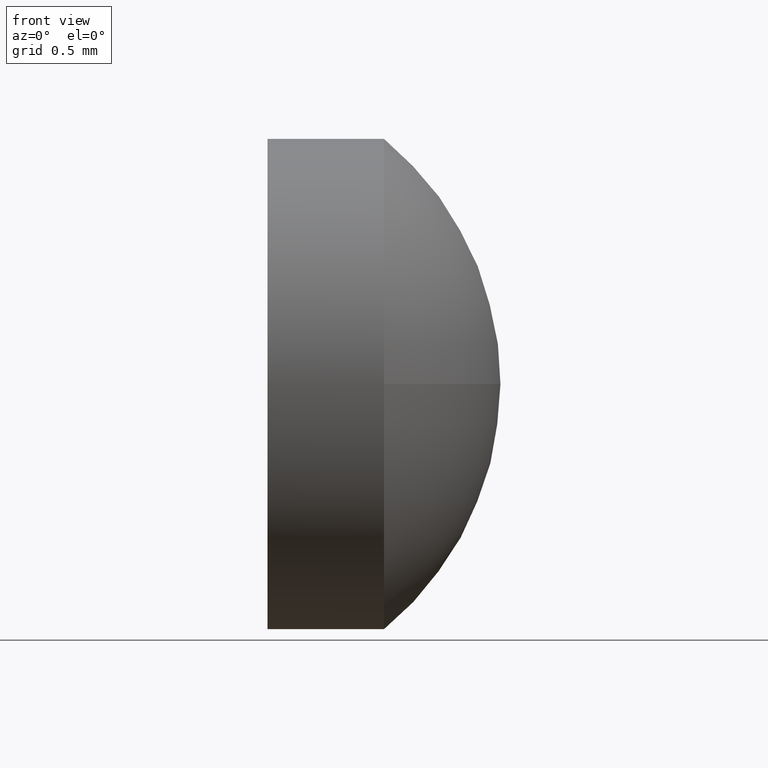
[diagram: clean part render]
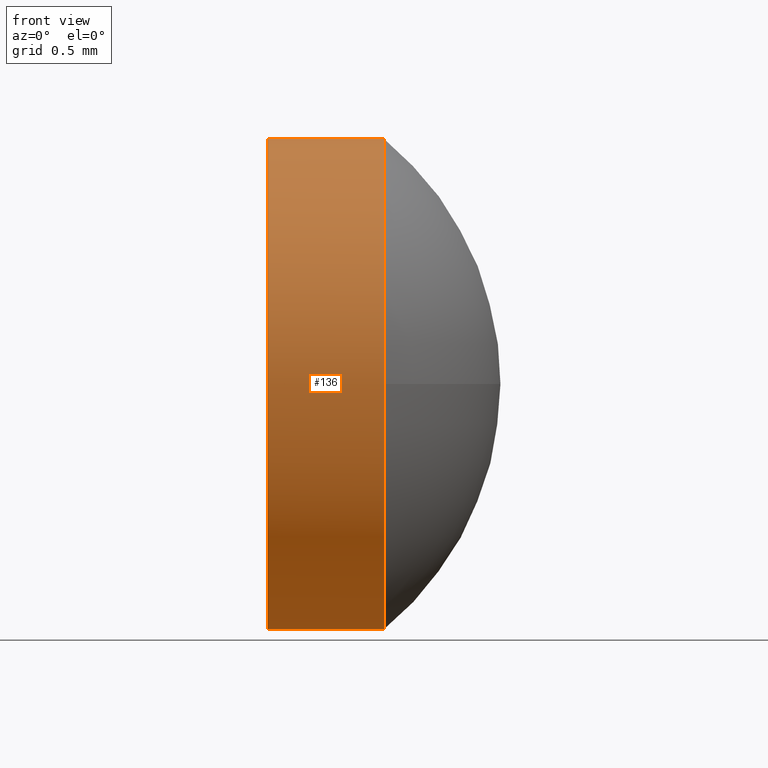
[diagram: same view with one face highlighted and labeled with its STEP entity id]
A machine part, front view. The second image highlights one B-rep face of the part: STEP entity #136.
In plain terms, the highlighted cylindrical surface (partial cylindrical patch) has radius 2 mm, axis along (-1, -0, -0).
Its self-contained STEP definition (entity closure, byte-faithful):
#3 = AXIS2_PLACEMENT_3D ( 'NONE', #100, #83, #138 ) ;
#4 = CARTESIAN_POINT ( 'NONE',  ( 423.4283672634038600, 105.4806161096724700, -2.000000000000008900 ) ) ;
#5 = CARTESIAN_POINT ( 'NONE',  ( 423.4283672634038600, 105.4806161096724700, 2.000000000000008900 ) ) ;
#9 = EDGE_CURVE ( 'NONE', #130, #85, #41, .T. ) ;
#14 = FACE_OUTER_BOUND ( 'NONE', #148, .T. ) ;
#22 = DIRECTION ( 'NONE',  ( 0.0000000000000000000, 0.0000000000000000000, 1.000000000000000000 ) ) ;
#33 = DIRECTION ( 'NONE',  ( -1.000000000000000000, -0.0000000000000000000, -0.0000000000000000000 ) ) ;
#36 = LINE ( 'NONE', #5, #170 ) ;
#38 = CARTESIAN_POINT ( 'NONE',  ( 424.0583397017737200, 105.4806161096724700, 0.0000000000000000000 ) ) ;
#41 = CIRCLE ( 'NONE', #95, 2.000000000000015500 ) ;
#42 = CARTESIAN_POINT ( 'NONE',  ( 424.0583397017737200, 105.4806161096724700, 2.000000000000001800 ) ) ;
#48 = DIRECTION ( 'NONE',  ( -1.000000000000000000, -0.0000000000000000000, -0.0000000000000000000 ) ) ;
#49 = EDGE_CURVE ( 'NONE', #164, #69, #51, .T. ) ;
#50 = ORIENTED_EDGE ( 'NONE', *, *, #143, .T. ) ;
#51 = CIRCLE ( 'NONE', #139, 2.000000000000001800 ) ;
#64 = DIRECTION ( 'NONE',  ( -1.000000000000000000, -0.0000000000000000000, -0.0000000000000000000 ) ) ;
#66 = DIRECTION ( 'NONE',  ( -1.000000000000000000, -0.0000000000000000000, -0.0000000000000000000 ) ) ;
#69 = VERTEX_POINT ( 'NONE', #42 ) ;
#72 = ORIENTED_EDGE ( 'NONE', *, *, #101, .T. ) ;
#81 = CYLINDRICAL_SURFACE ( 'NONE', #173, 2.000000000000008900 ) ;
#83 = DIRECTION ( 'NONE',  ( -1.000000000000000000, -0.0000000000000000000, -0.0000000000000000000 ) ) ;
#85 = VERTEX_POINT ( 'NONE', #129 ) ;
#86 = CARTESIAN_POINT ( 'NONE',  ( 423.4283672634038600, 105.4806161096724700, 0.0000000000000000000 ) ) ;
#90 = CARTESIAN_POINT ( 'NONE',  ( 425.0083397017737100, 105.4806161096724700, 0.0000000000000000000 ) ) ;
#95 = AXIS2_PLACEMENT_3D ( 'NONE', #90, #104, #22 ) ;
#98 = CARTESIAN_POINT ( 'NONE',  ( 425.0083397017737100, 105.4806161096724700, -2.000000000000015500 ) ) ;
#100 = CARTESIAN_POINT ( 'NONE',  ( 425.0083397017737100, 105.4806161096724700, 0.0000000000000000000 ) ) ;
#101 = EDGE_CURVE ( 'NONE', #85, #69, #36, .T. ) ;
#104 = DIRECTION ( 'NONE',  ( -1.000000000000000000, -0.0000000000000000000, -0.0000000000000000000 ) ) ;
#114 = CARTESIAN_POINT ( 'NONE',  ( 425.0083397017737100, 103.4806161096724300, -2.449293598294728600E-016 ) ) ;
#121 = CARTESIAN_POINT ( 'NONE',  ( 424.0583397017737200, 105.4806161096724700, -2.000000000000001800 ) ) ;
#125 = LINE ( 'NONE', #4, #163 ) ;
#129 = CARTESIAN_POINT ( 'NONE',  ( 425.0083397017737100, 105.4806161096724700, 2.000000000000015500 ) ) ;
#130 = VERTEX_POINT ( 'NONE', #114 ) ;
#135 = CIRCLE ( 'NONE', #3, 2.000000000000015500 ) ;
#136 = ADVANCED_FACE ( 'NONE', ( #14 ), #81, .T. ) ;
#138 = DIRECTION ( 'NONE',  ( 0.0000000000000000000, 0.0000000000000000000, 1.000000000000000000 ) ) ;
#139 = AXIS2_PLACEMENT_3D ( 'NONE', #38, #66, #161 ) ;
#141 = VERTEX_POINT ( 'NONE', #98 ) ;
#143 = EDGE_CURVE ( 'NONE', #141, #130, #135, .T. ) ;
#148 = EDGE_LOOP ( 'NONE', ( #184, #50, #174, #72, #156 ) ) ;
#153 = DIRECTION ( 'NONE',  ( 0.0000000000000000000, 0.0000000000000000000, 1.000000000000000000 ) ) ;
#156 = ORIENTED_EDGE ( 'NONE', *, *, #49, .F. ) ;
#161 = DIRECTION ( 'NONE',  ( 0.0000000000000000000, 0.0000000000000000000, 1.000000000000000000 ) ) ;
#162 = EDGE_CURVE ( 'NONE', #141, #164, #125, .T. ) ;
#163 = VECTOR ( 'NONE', #33, 1000.000000000000000 ) ;
#164 = VERTEX_POINT ( 'NONE', #121 ) ;
#170 = VECTOR ( 'NONE', #48, 1000.000000000000000 ) ;
#173 = AXIS2_PLACEMENT_3D ( 'NONE', #86, #64, #153 ) ;
#174 = ORIENTED_EDGE ( 'NONE', *, *, #9, .T. ) ;
#184 = ORIENTED_EDGE ( 'NONE', *, *, #162, .F. ) ;